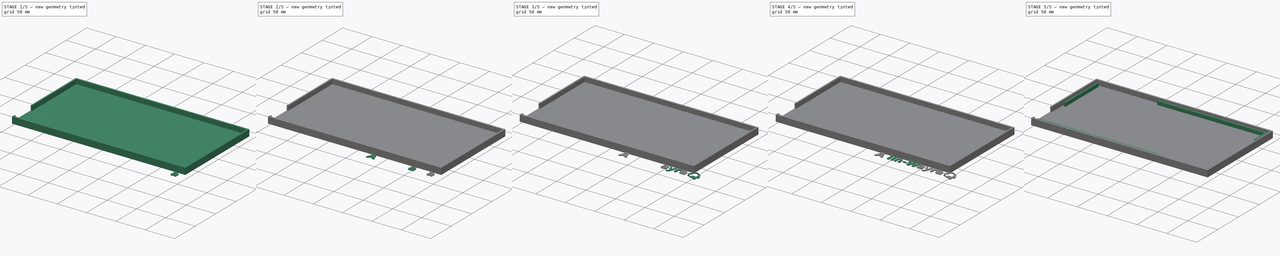
[diagram: build sequence overview — one tinted view per stage of 5, left to right]
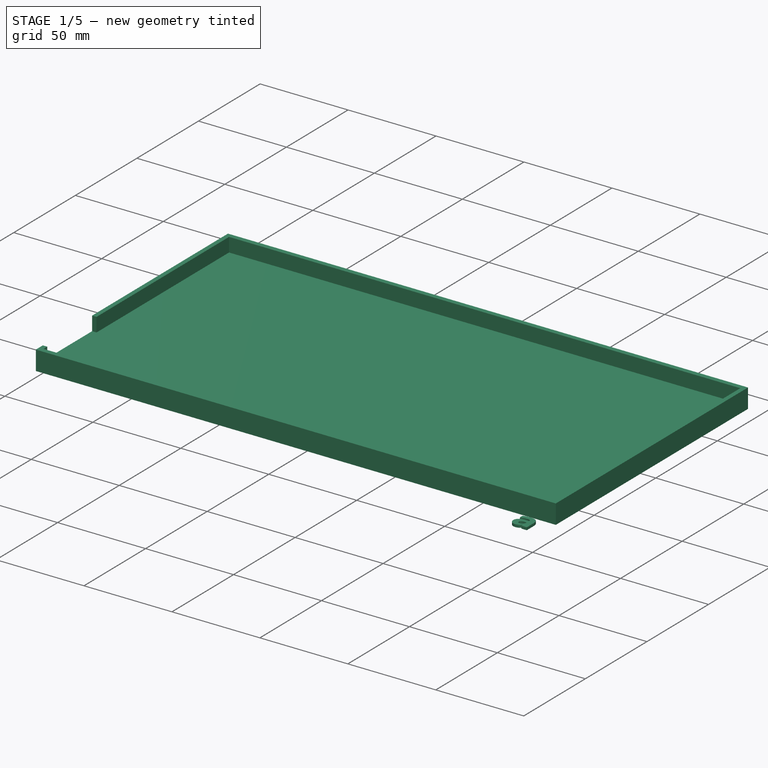
[diagram: stage 1 of 5 — iso view after this stage's code; geometry added in this stage tinted green]
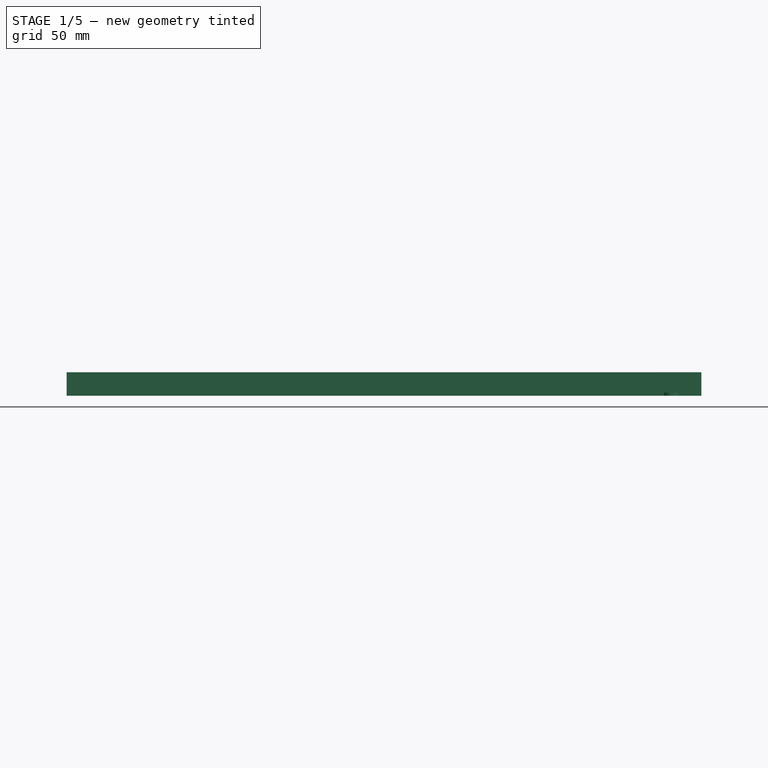
[diagram: stage 1 of 5 — front view after this stage's code; geometry added in this stage tinted green]
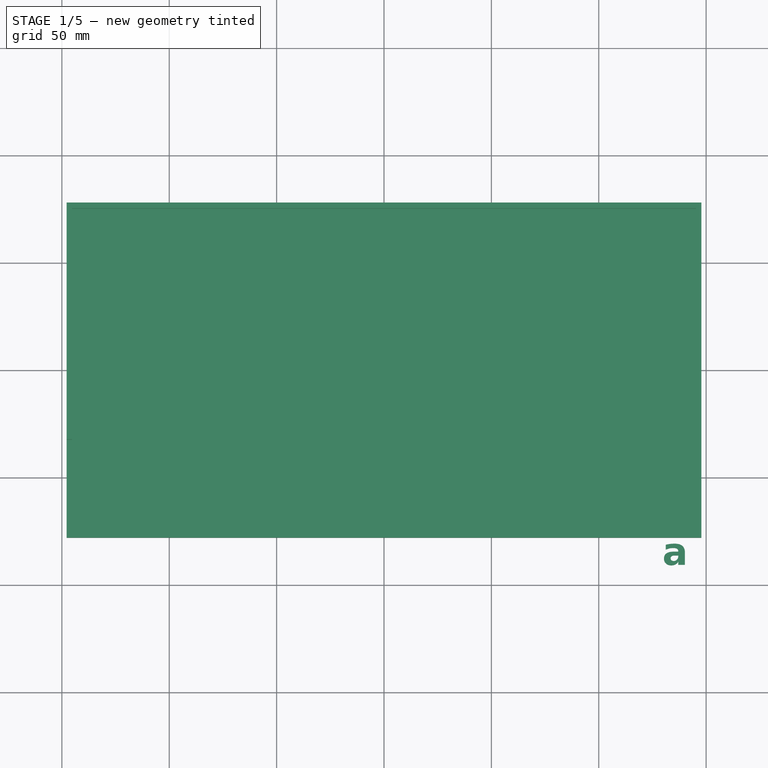
[diagram: stage 1 of 5 — top view after this stage's code; geometry added in this stage tinted green]
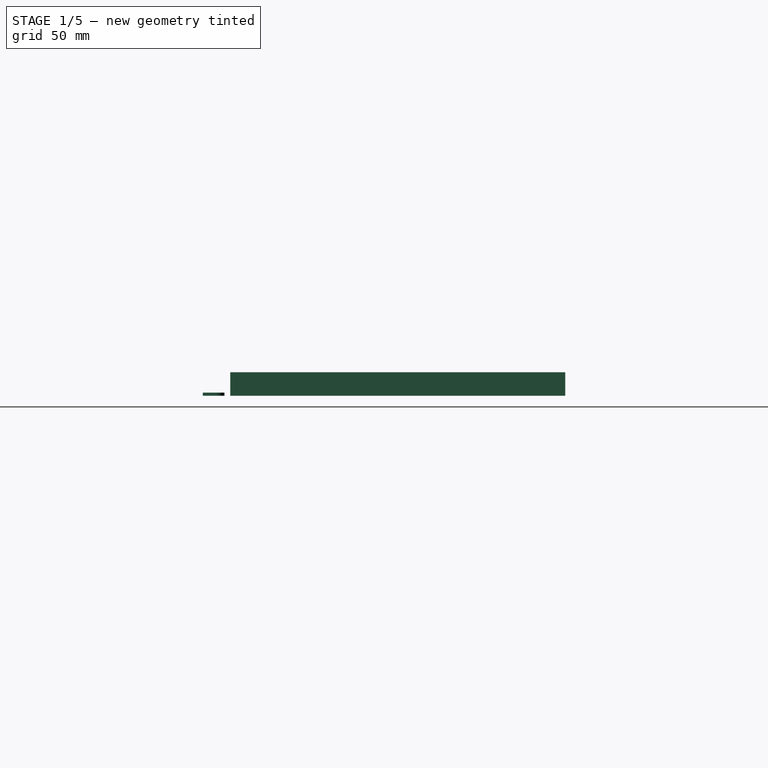
[diagram: stage 1 of 5 — right view after this stage's code; geometry added in this stage tinted green]
FCSTD DOCUMENT  (FreeCAD 0.16R6712 (Git))
Label: tapa
License: All rights reserved
LicenseURL: http://en.wikipedia.org/wiki/All_rights_reserved
objects: Part::Feature×21, Part::Extrusion×18, Sketcher::SketchObject×6, Part::Cut×4, PartDesign::Pad×3, PartDesign::Pocket×3, Part::MultiFuse×1
note: 62 computed .brp shape members not serialized (recipe doc carries the construction recipe); baked Part::Feature solids carry a one-line shape summary decoded from their .brp

FEATURE [Sketcher::SketchObject] Sketch
  sketch-geometry (4):
    g0: LineSegment StartX=-147.8 StartY=78 StartZ=0 EndX=147.8 EndY=78 EndZ=0
    g1: LineSegment StartX=147.8 StartY=78 StartZ=0 EndX=147.8 EndY=-78 EndZ=0
    g2: LineSegment StartX=147.8 StartY=-78 StartZ=0 EndX=-147.8 EndY=-78 EndZ=0
    g3: LineSegment StartX=-147.8 StartY=-78 StartZ=0 EndX=-147.8 EndY=78 EndZ=0
  constraints (13):
    c: Coincident(g0,g1)
    c: Coincident(g1,g2)
    c: Coincident(g2,g3)
    c: Coincident(g3,g0)
    c: Horizontal(g0)
    c: Horizontal(g2)
    c: Vertical(g1)
    c: Vertical(g3)
    c: Equal(g0,g2)
    c: DistanceX(g0,g0) = 295.6
    c: DistanceY(g3,g3) = 156
    c: Symmetric(g0,g2,g-1)
    c: Symmetric(g0,g0,g-2)
FEATURE [PartDesign::Pad] Pad
  Length = 3
  Length2 = 100
  Sketch = -> Sketch
  Type = 0
FEATURE [Part::Extrusion] Extrude013
  Base = -> path3395
  Dir = (0,0,1.5)
  Solid = true
FEATURE [Part::Extrusion] Extrude014
  Base = -> path3395001
  Dir = (0,0,1.5)
  Solid = true
FEATURE [Part::Cut] Cut002
  Base = -> Extrude014
  Tool = -> Extrude013
FEATURE [PartDesign::Pad] Pad001
  Length = 8
  Length2 = 100
  Sketch = -> Sketch002
  Type = 0
FEATURE [Sketcher::SketchObject] Sketch003
  Placement = pos=(-147.8,0,0) rot=(0.57735,-0.57735,-0.57735;2.0944rad)
  Support = -> Pad001 [Face9]
  sketch-geometry (4):
    g0: LineSegment StartX=32.3 StartY=11 StartZ=0 EndX=72.3 EndY=11 EndZ=0
    g1: LineSegment StartX=72.3 StartY=11 StartZ=0 EndX=72.3 EndY=3 EndZ=0
    g2: LineSegment StartX=72.3 StartY=3 StartZ=0 EndX=32.3 EndY=3 EndZ=0
    g3: LineSegment StartX=32.3 StartY=3 StartZ=0 EndX=32.3 EndY=11 EndZ=0
  constraints (14):
    c: Coincident(g0,g1)
    c: Coincident(g1,g2)
    c: Coincident(g2,g3)
    c: Coincident(g3,g0)
    c: Horizontal(g0)
    c: Horizontal(g2)
    c: Vertical(g1)
    c: Vertical(g3)
    c: DistanceX(g-1,g2) = 32.3
    c: DistanceX(g0,g0) = 40
    c: Equal(g2,g0)
    c: Equal(g3,g1)
    c: DistanceY(g1,g1) = 8
    c: DistanceY(g-1,g2) = 3
FEATURE [PartDesign::Pocket] Pocket
  Length = 2.5
  Sketch = -> Sketch003
  Type = 0
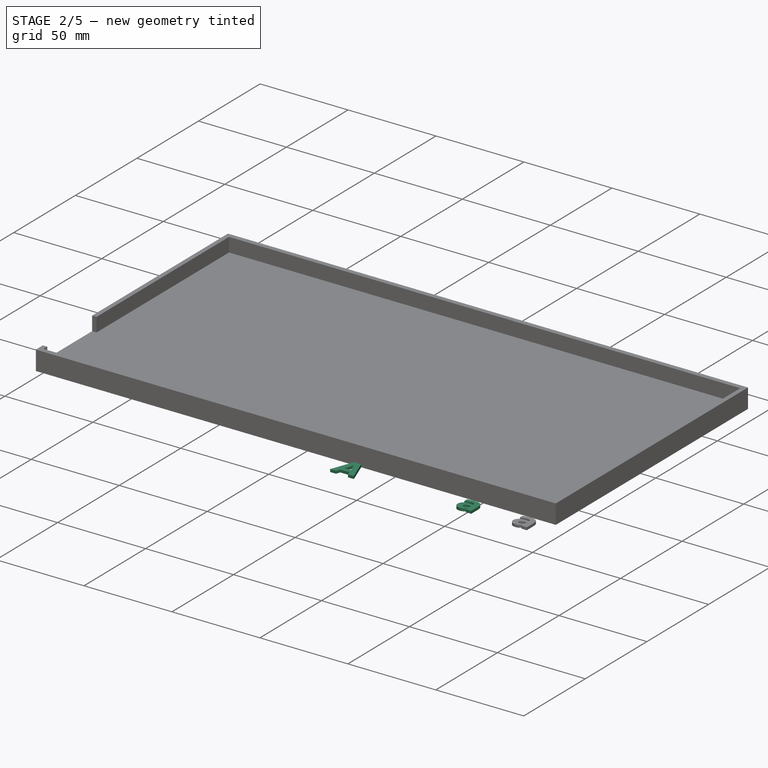
[diagram: stage 2 of 5 — iso view after this stage's code; geometry added in this stage tinted green]
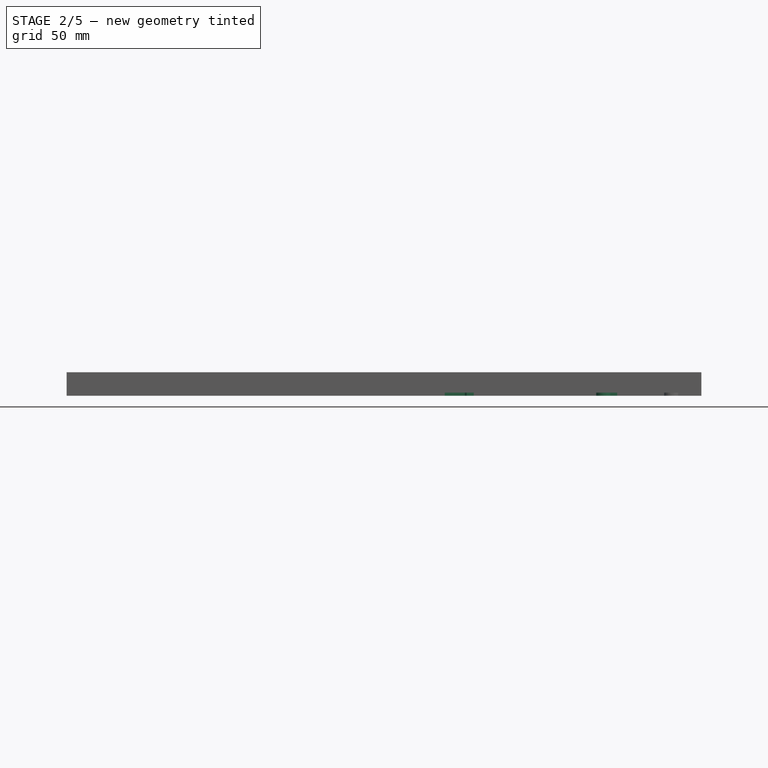
[diagram: stage 2 of 5 — front view after this stage's code; geometry added in this stage tinted green]
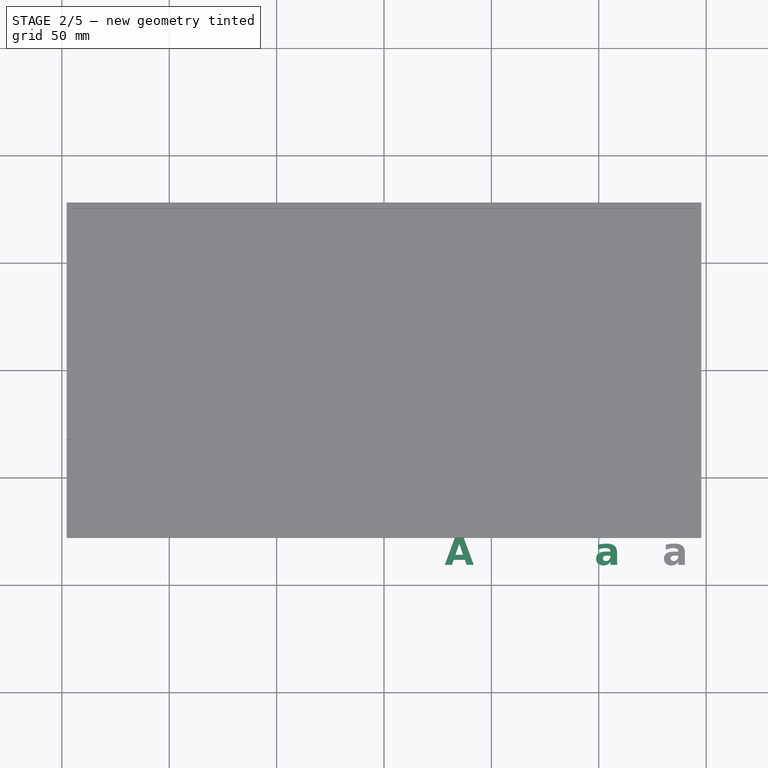
[diagram: stage 2 of 5 — top view after this stage's code; geometry added in this stage tinted green]
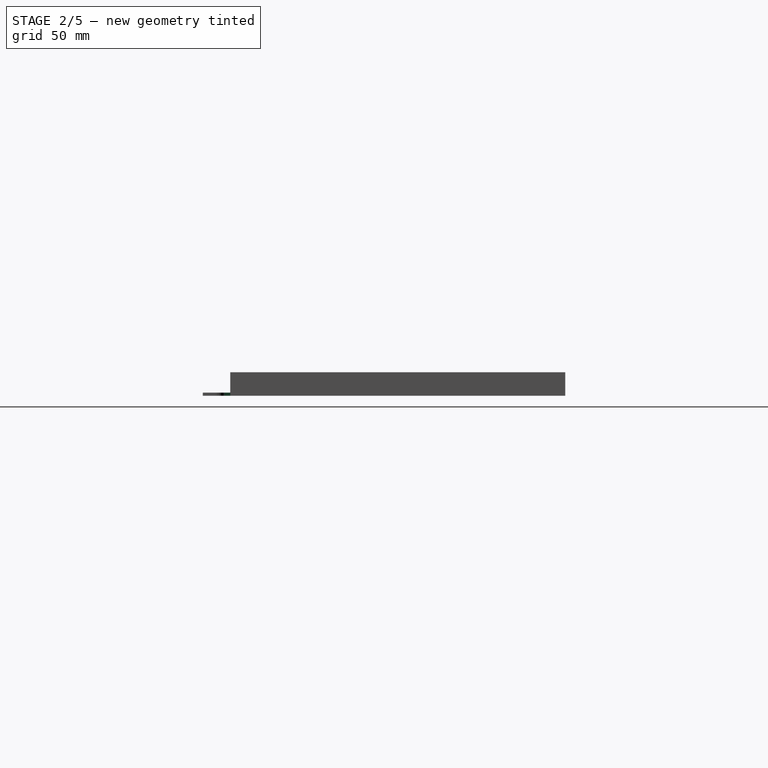
[diagram: stage 2 of 5 — right view after this stage's code; geometry added in this stage tinted green]
FEATURE [Sketcher::SketchObject] Sketch002
  Placement = pos=(0,0,3) rot=(0,0,1;0rad)
  Support = -> Pad [Face6]
  sketch-geometry (8):
    g0: LineSegment StartX=-147.8 StartY=78 StartZ=0 EndX=147.8 EndY=78 EndZ=0
    g1: LineSegment StartX=147.8 StartY=78 StartZ=0 EndX=147.8 EndY=-78 EndZ=0
    g2: LineSegment StartX=147.8 StartY=-78 StartZ=0 EndX=-147.8 EndY=-78 EndZ=0
    g3: LineSegment StartX=-147.8 StartY=-78 StartZ=0 EndX=-147.8 EndY=78 EndZ=0
    g4: LineSegment StartX=-145.3 StartY=75.3 StartZ=0 EndX=145.3 EndY=75.3 EndZ=0
    g5: LineSegment StartX=145.3 StartY=75.3 StartZ=0 EndX=145.3 EndY=-75.3 EndZ=0
    g6: LineSegment StartX=145.3 StartY=-75.3 StartZ=0 EndX=-145.3 EndY=-75.3 EndZ=0
    g7: LineSegment StartX=-145.3 StartY=-75.3 StartZ=0 EndX=-145.3 EndY=75.3 EndZ=0
  constraints (26):
    c: Coincident(g0,g1)
    c: Coincident(g1,g2)
    c: Coincident(g2,g3)
    c: Coincident(g3,g0)
    c: Horizontal(g2)
    c: Vertical(g1)
    c: Vertical(g3)
    c: Coincident(g4,g5)
    c: Coincident(g5,g6)
    c: Coincident(g6,g7)
    c: Coincident(g7,g4)
    c: Horizontal(g6)
    c: Vertical(g5)
    c: Vertical(g7)
    c: Equal(g4,g6)
    c: DistanceX(g4,g4) = 290.6
    c: Equal(g0,g2)
    c: DistanceX(g0,g0) = 295.6
    c: Symmetric(g0,g0,g-2)
    c: Symmetric(g4,g4,g-2)
    c: Equal(g7,g5)
    c: Equal(g3,g1)
    c: DistanceY(g3,g3) = 156
    c: Symmetric(g0,g2,g-1)
    c: Symmetric(g4,g6,g-1)
    c: DistanceY(g7,g7) = 150.6
FEATURE [Part::Feature] path3375
  shape: bbox 13.48 x 12.86 x 2e-07 mm, 0 faces, 0 solids (baked)
FEATURE [Part::Feature] path3375001
  shape: bbox 3.523 x 5.116 x 2e-07 mm, 0 faces, 0 solids (baked)
FEATURE [Part::Feature] path3377
  shape: bbox 3.083 x 13.4 x 2e-07 mm, 0 faces, 0 solids (baked)
FEATURE [Part::Feature] path3379
  shape: bbox 3.083 x 13.4 x 2e-07 mm, 0 faces, 0 solids (baked)
FEATURE [Part::Feature] path3381
  shape: bbox 3.083 x 9.646 x 2e-07 mm, 0 faces, 0 solids (baked)
FEATURE [Part::Feature] path3381001
  shape: bbox 3.083 x 2.515 x 2e-07 mm, 0 faces, 0 solids (baked)
FEATURE [Part::Feature] path3383
  shape: bbox 9.698 x 9.879 x 2e-07 mm, 0 faces, 0 solids (baked)
FEATURE [Part::Feature] path3385
  shape: bbox 5.409 x 2.506 x 2e-07 mm, 0 faces, 0 solids (baked)
FEATURE [Part::Feature] path3387
  shape: bbox 18.38 x 12.86 x 2e-07 mm, 0 faces, 0 solids (baked)
FEATURE [Part::Feature] path3389
  shape: bbox 3.54 x 2.541 x 2e-07 mm, 0 faces, 0 solids (baked)
FEATURE [Part::Feature] path3389001
  shape: bbox 9.758 x 10.13 x 2e-07 mm, 0 faces, 0 solids (baked)
FEATURE [Part::Feature] path3391
  shape: bbox 10.96 x 13.45 x 2e-07 mm, 0 faces, 0 solids (baked)
FEATURE [Part::Feature] path3393
  shape: bbox 7.166 x 9.879 x 2e-07 mm, 0 faces, 0 solids (baked)
FEATURE [Part::Feature] path3395
  shape: bbox 3.54 x 2.541 x 2e-07 mm, 0 faces, 0 solids (baked)
FEATURE [Part::Feature] path3395001
  shape: bbox 9.758 x 10.13 x 2e-07 mm, 0 faces, 0 solids (baked)
FEATURE [Part::Feature] path3509
  shape: bbox 17.43 x 14.72 x 2e-07 mm, 0 faces, 0 solids (baked)
FEATURE [Part::Feature] path3509001
  shape: bbox 12.2 x 5.515 x 2e-07 mm, 0 faces, 0 solids (baked)
FEATURE [Part::Feature] path3509002
  shape: bbox 11.04 x 4.907 x 2e-07 mm, 0 faces, 0 solids (baked)
FEATURE [Part::Extrusion] Extrude
  Base = -> path3375
  Dir = (0,0,1.5)
  Solid = true
FEATURE [Part::Extrusion] Extrude001
  Base = -> path3375001
  Dir = (0,0,1.5)
  Solid = true
FEATURE [Part::Extrusion] Extrude009
  Base = -> path3389
  Dir = (0,0,1.5)
  Solid = true
FEATURE [Part::Extrusion] Extrude010
  Base = -> path3389001
  Dir = (0,0,1.5)
  Solid = true
FEATURE [Part::Cut] Cut
  Base = -> Extrude
  Tool = -> Extrude001
FEATURE [Part::Cut] Cut001
  Base = -> Extrude010
  Tool = -> Extrude009
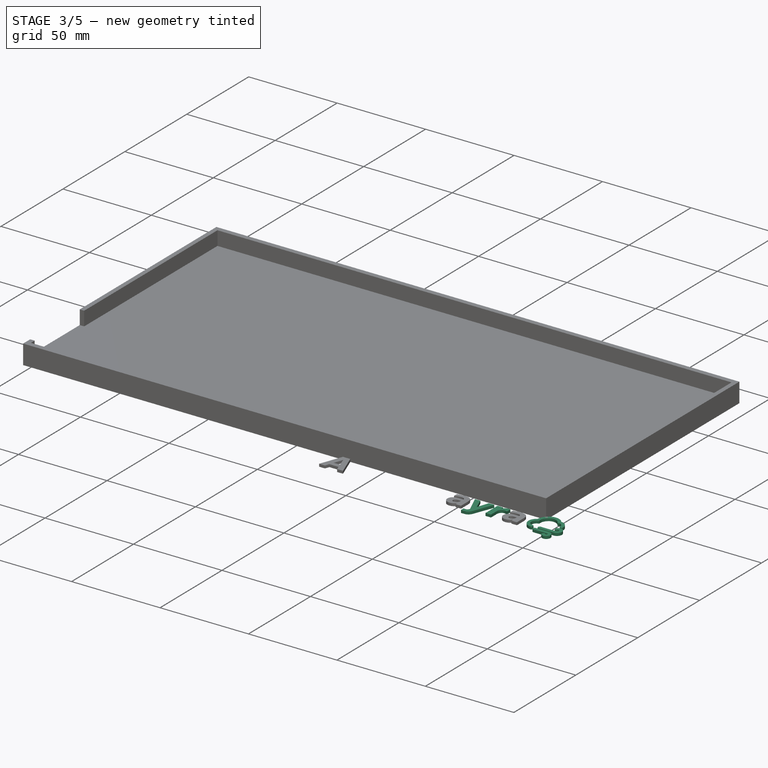
[diagram: stage 3 of 5 — iso view after this stage's code; geometry added in this stage tinted green]
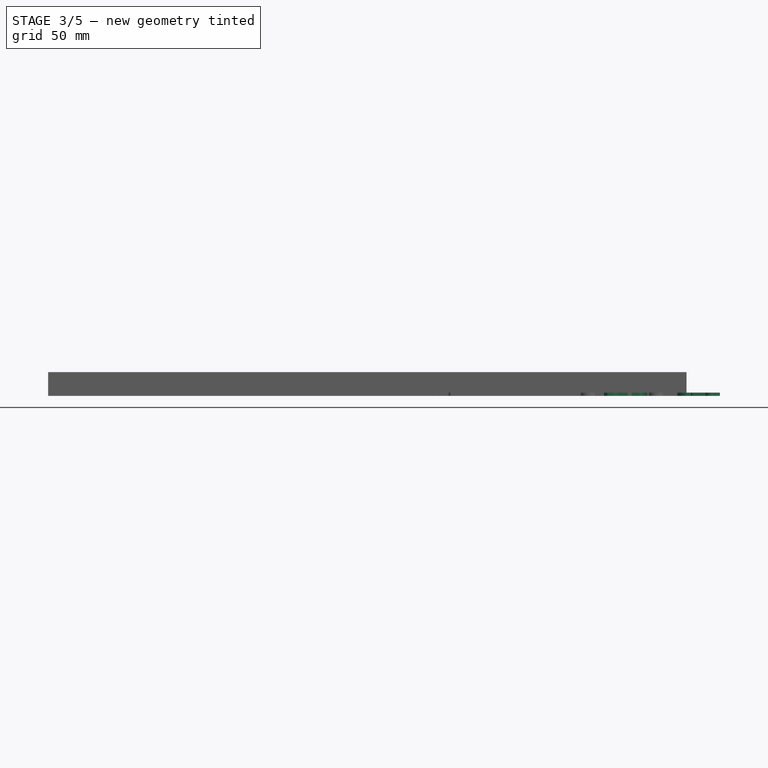
[diagram: stage 3 of 5 — front view after this stage's code; geometry added in this stage tinted green]
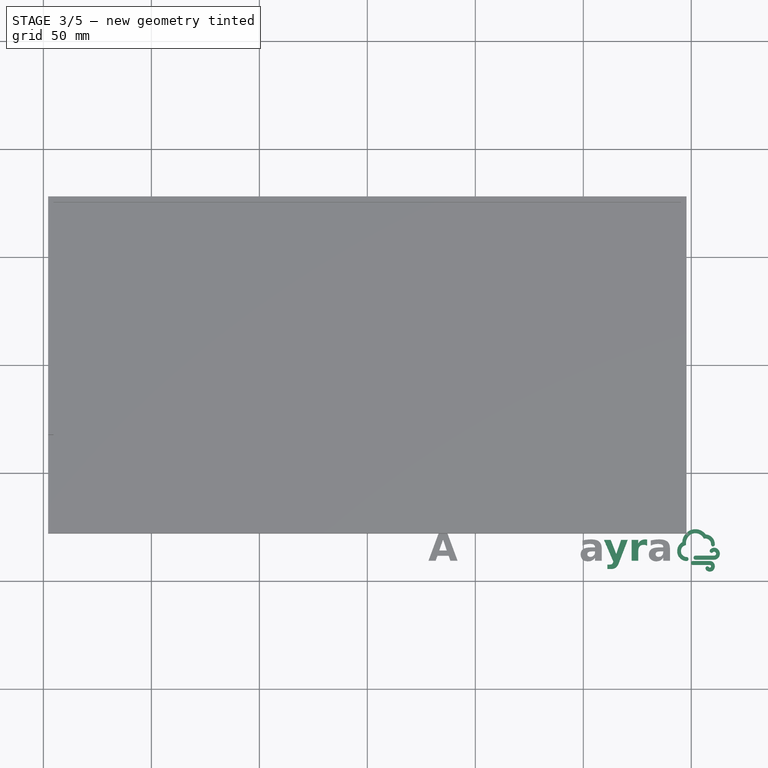
[diagram: stage 3 of 5 — top view after this stage's code; geometry added in this stage tinted green]
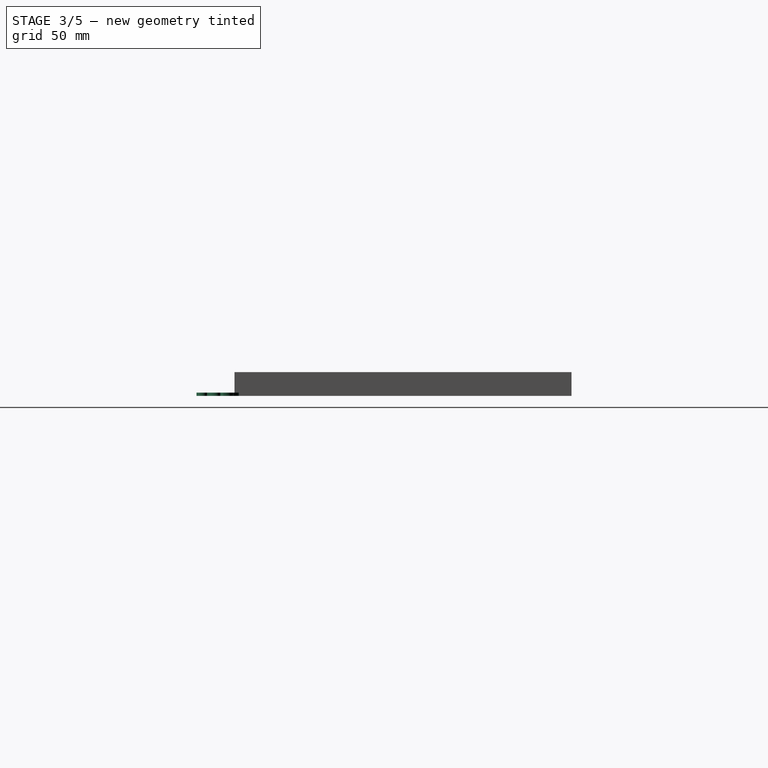
[diagram: stage 3 of 5 — right view after this stage's code; geometry added in this stage tinted green]
FEATURE [Part::Extrusion] Extrude011
  Base = -> path3391
  Dir = (0,0,1.5)
  Solid = true
FEATURE [Part::Extrusion] Extrude012
  Base = -> path3393
  Dir = (0,0,1.5)
  Solid = true
FEATURE [Part::Extrusion] Extrude015
  Base = -> path3509
  Dir = (0,0,1.5)
  Solid = true
FEATURE [Part::Extrusion] Extrude016
  Base = -> path3509001
  Dir = (0,0,1.5)
  Solid = true
FEATURE [Part::Extrusion] Extrude017
  Base = -> path3509002
  Dir = (0,0,1.5)
  Solid = true
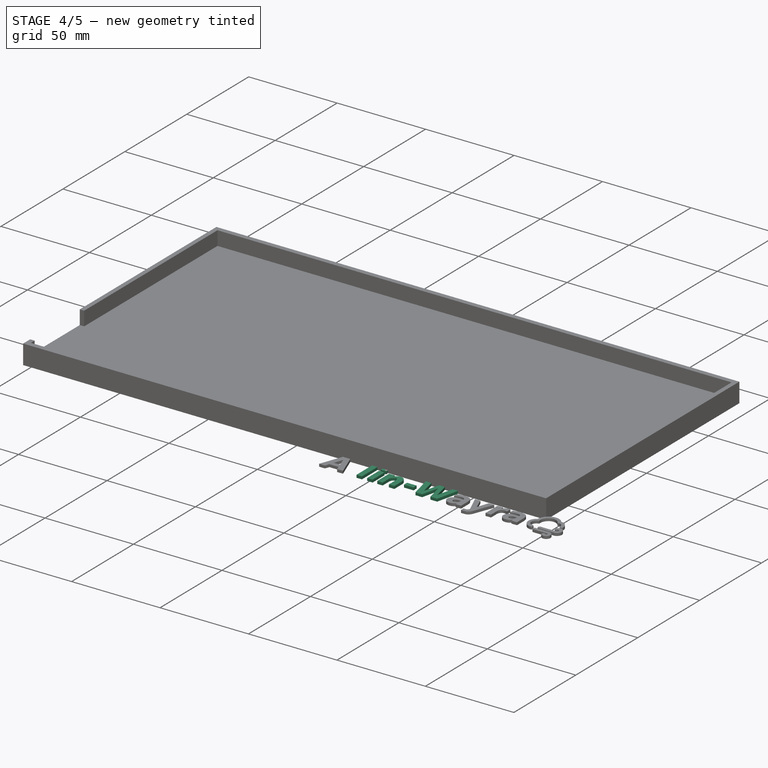
[diagram: stage 4 of 5 — iso view after this stage's code; geometry added in this stage tinted green]
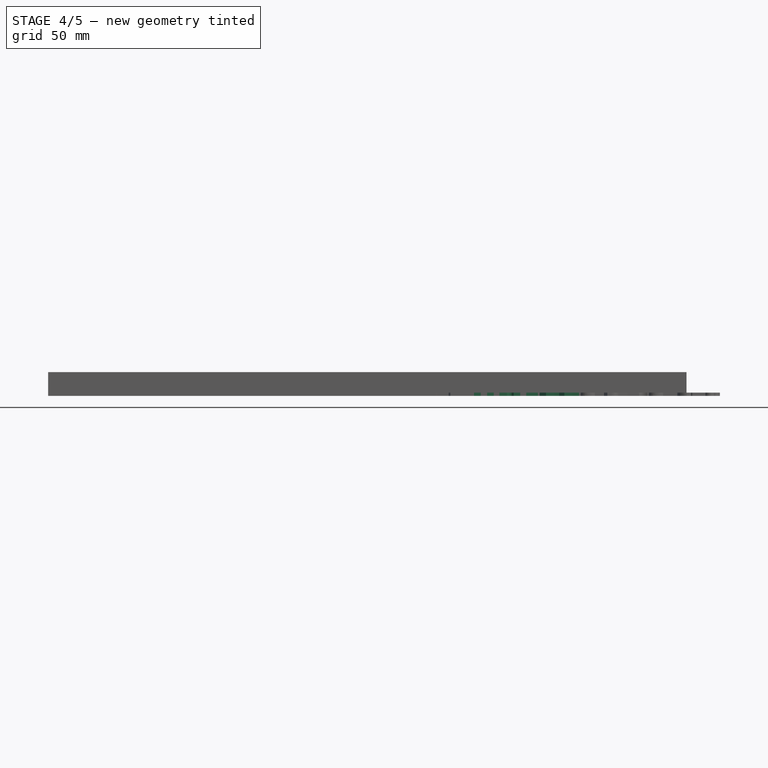
[diagram: stage 4 of 5 — front view after this stage's code; geometry added in this stage tinted green]
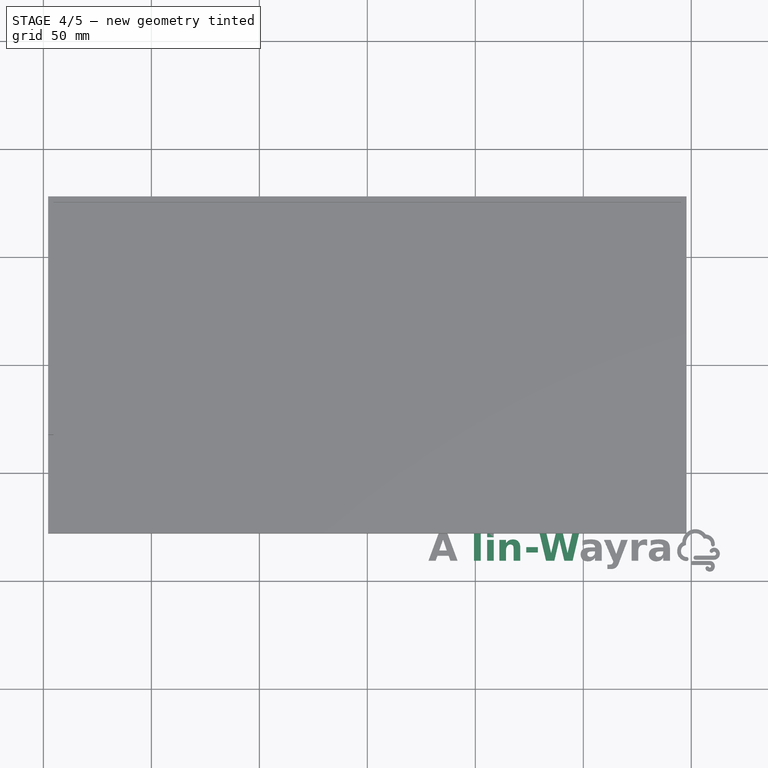
[diagram: stage 4 of 5 — top view after this stage's code; geometry added in this stage tinted green]
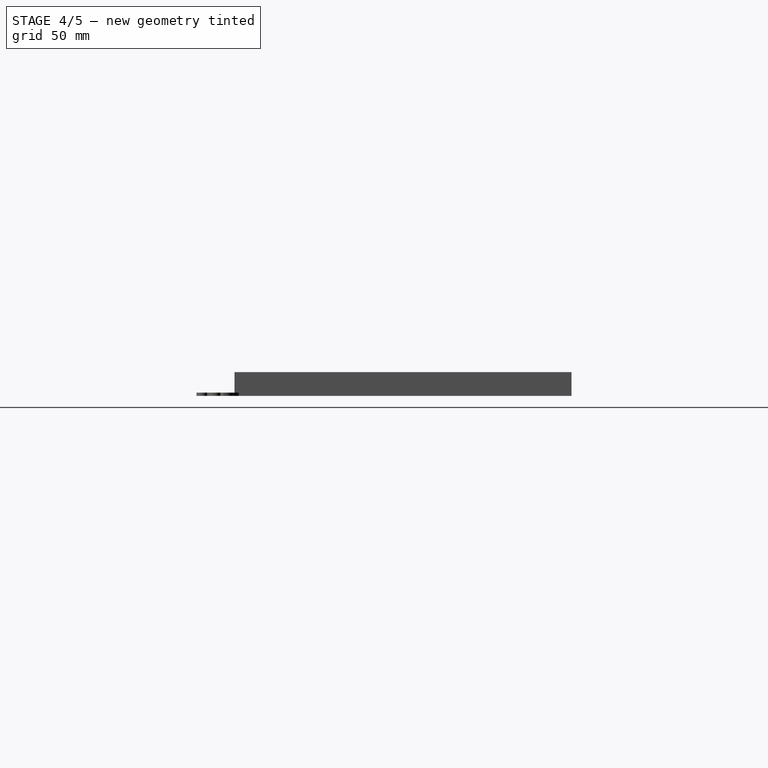
[diagram: stage 4 of 5 — right view after this stage's code; geometry added in this stage tinted green]
FEATURE [Part::Extrusion] Extrude003
  Base = -> path3379
  Dir = (0,0,1.5)
  Solid = true
FEATURE [Part::Extrusion] Extrude004
  Base = -> path3381
  Dir = (0,0,1.5)
  Solid = true
FEATURE [Part::Extrusion] Extrude005
  Base = -> path3381001
  Dir = (0,0,1.5)
  Solid = true
FEATURE [Part::Extrusion] Extrude006
  Base = -> path3383
  Dir = (0,0,1.5)
  Solid = true
FEATURE [Part::Extrusion] Extrude007
  Base = -> path3385
  Dir = (0,0,1.5)
  Solid = true
FEATURE [Part::Extrusion] Extrude008
  Base = -> path3387
  Dir = (0,0,1.5)
  Solid = true
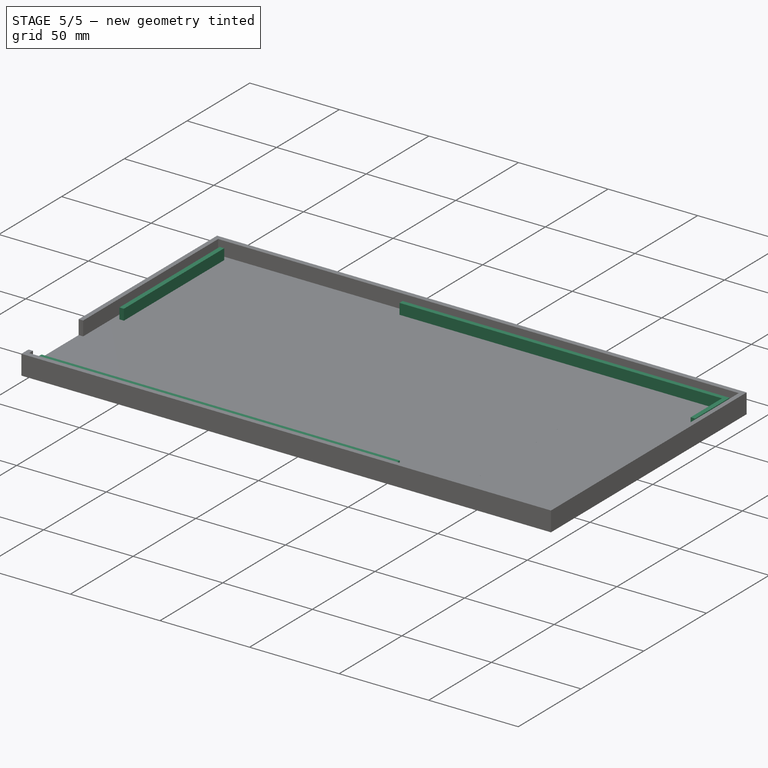
[diagram: stage 5 of 5 — iso view after this stage's code; geometry added in this stage tinted green]
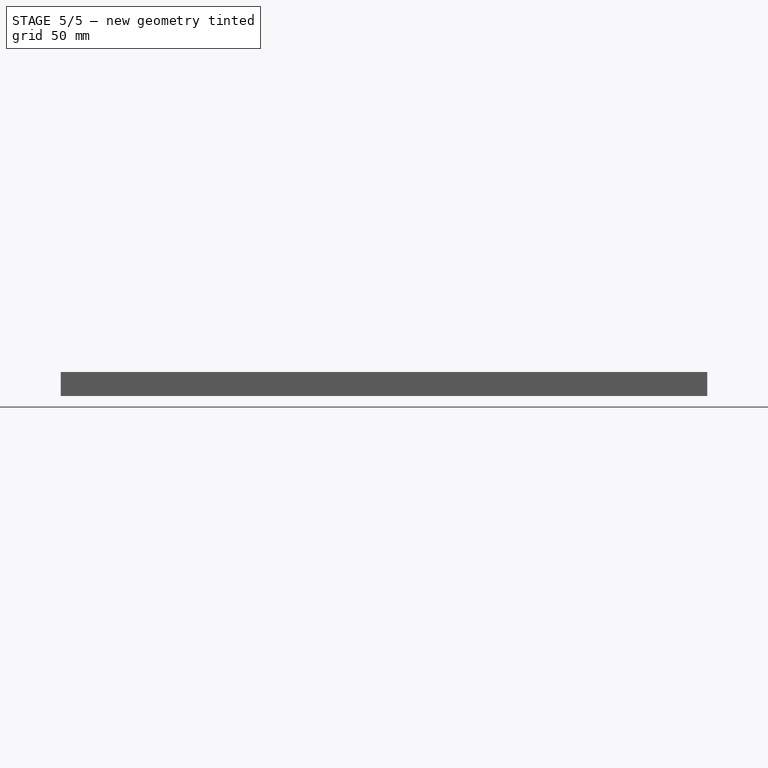
[diagram: stage 5 of 5 — front view after this stage's code; geometry added in this stage tinted green]
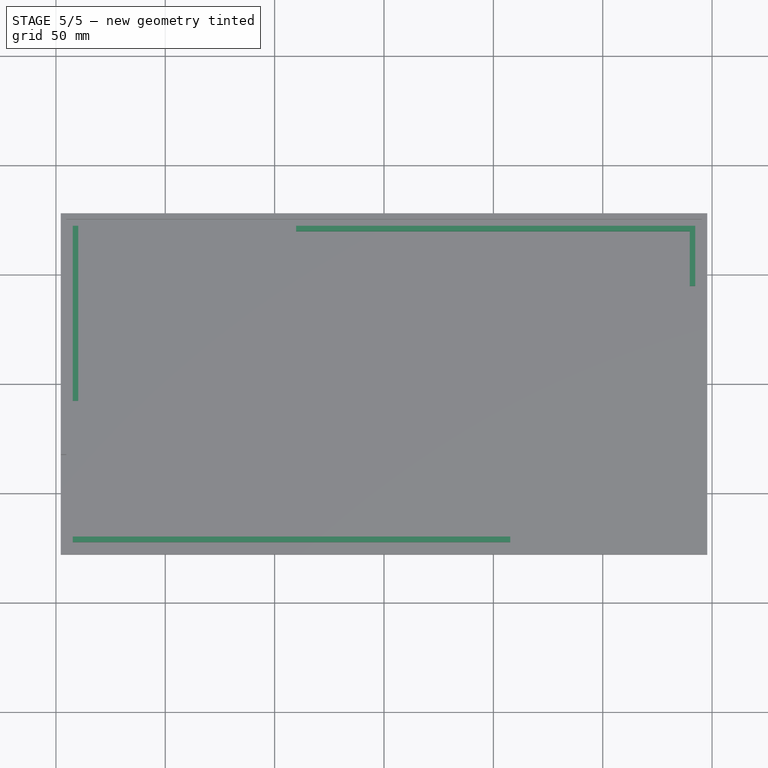
[diagram: stage 5 of 5 — top view after this stage's code; geometry added in this stage tinted green]
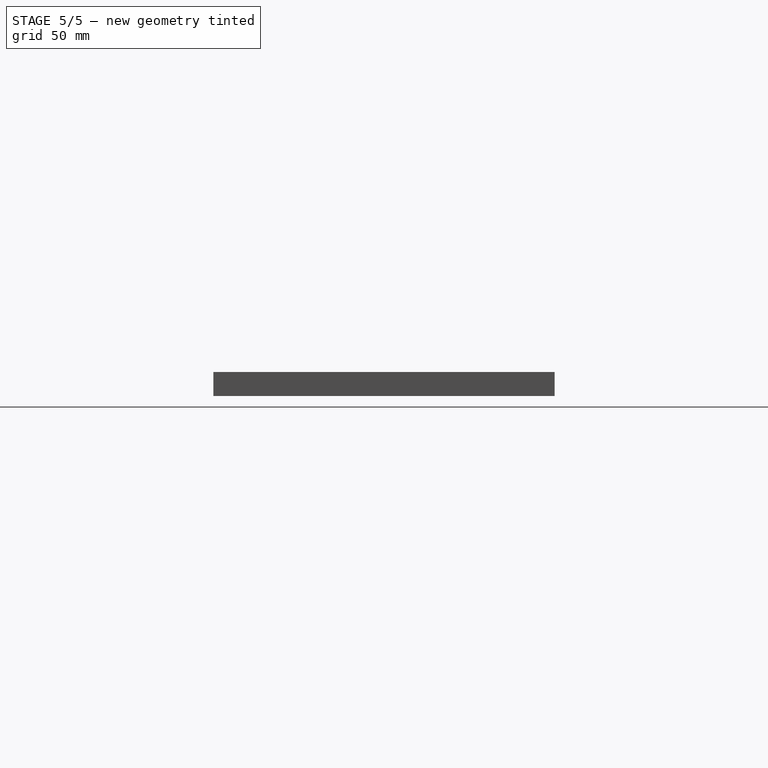
[diagram: stage 5 of 5 — right view after this stage's code; geometry added in this stage tinted green]
FEATURE [Part::Extrusion] Extrude002
  Base = -> path3377
  Dir = (0,0,1.5)
  Solid = true
FEATURE [Part::MultiFuse] Fusion
  Placement = pos=(-157,-134,1.5) rot=(1,0,0;3.14159rad)
  Shapes = -> [Cut002,Extrude016,Extrude004,Cut001,Extrude003,Extrude005,Extrude017,Extrude006,Extrude012,Cut,Extrude007,Extrude008,Extrude011,Extrude002,Extrude015]
FEATURE [Part::Cut] Cut003
  Base = -> Pocket
  Tool = -> Fusion
FEATURE [Sketcher::SketchObject] Sketch001
  Placement = pos=(0,0,3) rot=(0,0,1;0rad)
  Support = -> Cut003 [Face201]
  sketch-geometry (18):
    g0: LineSegment [constr] StartX=-142.3 StartY=72.3 StartZ=0 EndX=142.3 EndY=72.3 EndZ=0
    g1: LineSegment [constr] StartX=142.3 StartY=72.3 StartZ=0 EndX=142.3 EndY=-72.3 EndZ=0
    g2: LineSegment [constr] StartX=142.3 StartY=-72.3 StartZ=0 EndX=-142.3 EndY=-72.3 EndZ=0
    g3: LineSegment [constr] StartX=-142.3 StartY=-72.3 StartZ=0 EndX=-142.3 EndY=72.3 EndZ=0
    g4: LineSegment StartX=-142.3 StartY=72.3 StartZ=0 EndX=-139.8 EndY=72.3 EndZ=0
    g5: LineSegment StartX=-139.8 StartY=72.3 StartZ=0 EndX=-139.8 EndY=-7.7 EndZ=0
    g6: LineSegment StartX=-139.8 StartY=-7.7 StartZ=0 EndX=-142.3 EndY=-7.7 EndZ=0
    g7: LineSegment StartX=-142.3 StartY=-7.7 StartZ=0 EndX=-142.3 EndY=72.3 EndZ=0
    g8: LineSegment StartX=-142.3 StartY=-69.8 StartZ=0 EndX=57.7 EndY=-69.8 EndZ=0
    g9: LineSegment StartX=57.7 StartY=-69.8 StartZ=0 EndX=57.7 EndY=-72.3 EndZ=0
    g10: LineSegment StartX=57.7 StartY=-72.3 StartZ=0 EndX=-142.3 EndY=-72.3 EndZ=0
    g11: LineSegment StartX=-142.3 StartY=-72.3 StartZ=0 EndX=-142.3 EndY=-69.8 EndZ=0
    g12: LineSegment StartX=-40.2 StartY=69.8 StartZ=0 EndX=139.8 EndY=69.8 EndZ=0
    g13: LineSegment StartX=139.8 StartY=69.8 StartZ=0 EndX=139.8 EndY=44.8 EndZ=0
    g14: LineSegment StartX=139.8 StartY=44.8 StartZ=0 EndX=142.3 EndY=44.8 EndZ=0
    g15: LineSegment StartX=142.3 StartY=44.8 StartZ=0 EndX=142.3 EndY=72.3 EndZ=0
    g16: LineSegment StartX=142.3 StartY=72.3 StartZ=0 EndX=-40.2 EndY=72.3 EndZ=0
    g17: LineSegment StartX=-40.2 StartY=72.3 StartZ=0 EndX=-40.2 EndY=69.8 EndZ=0
  constraints (54):
    c: Coincident(g0,g1)
    c: Coincident(g1,g2)
    c: Coincident(g2,g3)
    c: Coincident(g3,g0)
    c: Vertical(g1)
    c: Equal(g0,g2)
    c: Equal(g3,g1)
    c: DistanceX(g0,g0) = 284.6
    c: Symmetric(g0,g0,g-2)
    c: DistanceY(g3,g3) = 144.6
    c: Symmetric(g0,g2,g-1)
    c: Coincident(g4,g5)
    c: Coincident(g5,g6)
    c: Coincident(g6,g7)
    c: Coincident(g7,g4)
    c: Horizontal(g4)
    c: Horizontal(g6)
    c: Vertical(g5)
    c: Vertical(g7)
    c: Coincident(g8,g9)
    c: Coincident(g9,g10)
    c: Coincident(g10,g11)
    c: Coincident(g11,g8)
    c: Horizontal(g8)
    c: Horizontal(g10)
    c: Vertical(g9)
    c: Vertical(g11)
    c: Equal(g4,g6)
    c: Equal(g6,g11)
    c: Equal(g11,g9)
    c: DistanceX(g4,g4) = 2.5
    c: Equal(g7,g5)
    c: Equal(g10,g8)
    c: DistanceY(g5,g5) = 80
    c: DistanceX(g8,g8) = 200
    c: Horizontal(g12)
    c: Coincident(g13,g12)
    c: Vertical(g13)
    c: Coincident(g14,g13)
    c: Horizontal(g14)
    c: Coincident(g15,g14)
    c: Vertical(g15)
    c: Coincident(g16,g15)
    c: Horizontal(g16)
    c: Coincident(g17,g16)
    c: Coincident(g17,g12)
    c: Vertical(g17)
    c: Equal(g17,g11)
    c: DistanceY(g13,g13) = 25
    c: Coincident(g15,g0)
    c: DistanceX(g12,g12) = 180
    c: Coincident(g4,g0)
    c: Coincident(g10,g2)
    c: Equal(g14,g17)
FEATURE [PartDesign::Pad] Pad002
  Length = 6
  Length2 = 100
  Sketch = -> Sketch001
  Type = 0
FEATURE [Part::Feature] Pad002001  label="tapa"
  shape: bbox 295.6 x 156 x 11 mm, 240 faces (baked)
FEATURE [Sketcher::SketchObject] Sketch004
  Placement = pos=(0,0,0) rot=(1,0,0;3.14159rad)
  Support = -> Pad002 [Face1]
  sketch-geometry (4):
    g0: LineSegment StartX=90 StartY=87.0894 StartZ=0 EndX=216.991 EndY=87.0894 EndZ=0
    g1: LineSegment StartX=216.991 StartY=87.0894 StartZ=0 EndX=216.991 EndY=-97.6246 EndZ=0
    g2: LineSegment StartX=216.991 StartY=-97.6246 StartZ=0 EndX=90 EndY=-97.6246 EndZ=0
    g3: LineSegment StartX=90 StartY=-97.6246 StartZ=0 EndX=90 EndY=87.0894 EndZ=0
  constraints (11):
    c: Coincident(g0,g1)
    c: Coincident(g1,g2)
    c: Coincident(g2,g3)
    c: Coincident(g3,g0)
    c: Horizontal(g0)
    c: Horizontal(g2)
    c: Vertical(g1)
    c: Vertical(g3)
    c: Equal(g0,g2)
    c: Equal(g3,g1)
    c: DistanceX(g-1,g2) = 90
FEATURE [PartDesign::Pocket] Pocket001  label="tapa1"
  Length = 13
  Sketch = -> Sketch004
  Type = 0
FEATURE [Sketcher::SketchObject] Sketch005
  Placement = pos=(0,0,0) rot=(1,0,0;3.14159rad)
  Support = -> Pad002 [Face1]
  sketch-geometry (4):
    g0: LineSegment StartX=-179.106 StartY=101.85 StartZ=0 EndX=90 EndY=101.85 EndZ=0
    g1: LineSegment StartX=90 StartY=101.85 StartZ=0 EndX=90 EndY=-112.166 EndZ=0
    g2: LineSegment StartX=90 StartY=-112.166 StartZ=0 EndX=-179.106 EndY=-112.166 EndZ=0
    g3: LineSegment StartX=-179.106 StartY=-112.166 StartZ=0 EndX=-179.106 EndY=101.85 EndZ=0
  constraints (11):
    c: Coincident(g0,g1)
    c: Coincident(g1,g2)
    c: Coincident(g2,g3)
    c: Coincident(g3,g0)
    c: Horizontal(g0)
    c: Horizontal(g2)
    c: Vertical(g1)
    c: Vertical(g3)
    c: DistanceX(g-1,g1) = 90
    c: Equal(g0,g2)
    c: Equal(g3,g1)
FEATURE [PartDesign::Pocket] Pocket002  label="tapa2"
  Length = 13
  Sketch = -> Sketch005
  Type = 0
FEATURE [Part::Feature] Pocket001001  label="tapa003"
  shape: bbox 237.8 x 156 x 11 mm, 237 faces (baked)
FEATURE [Part::Feature] Pocket002001  label="tapa004"
  shape: bbox 57.8 x 156 x 11 mm, 16 faces (baked)
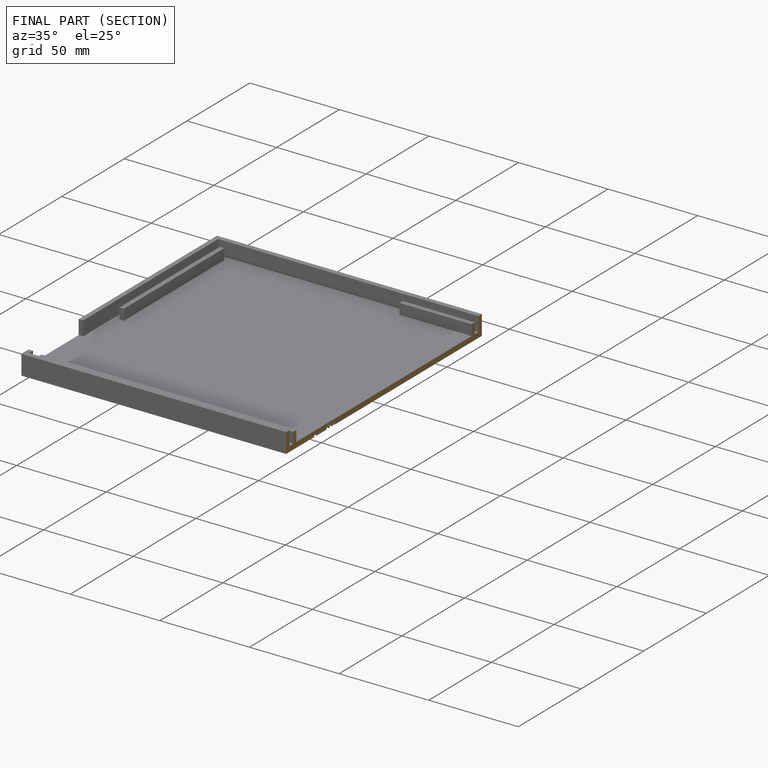
[diagram: finished part — half-section view (interior)]
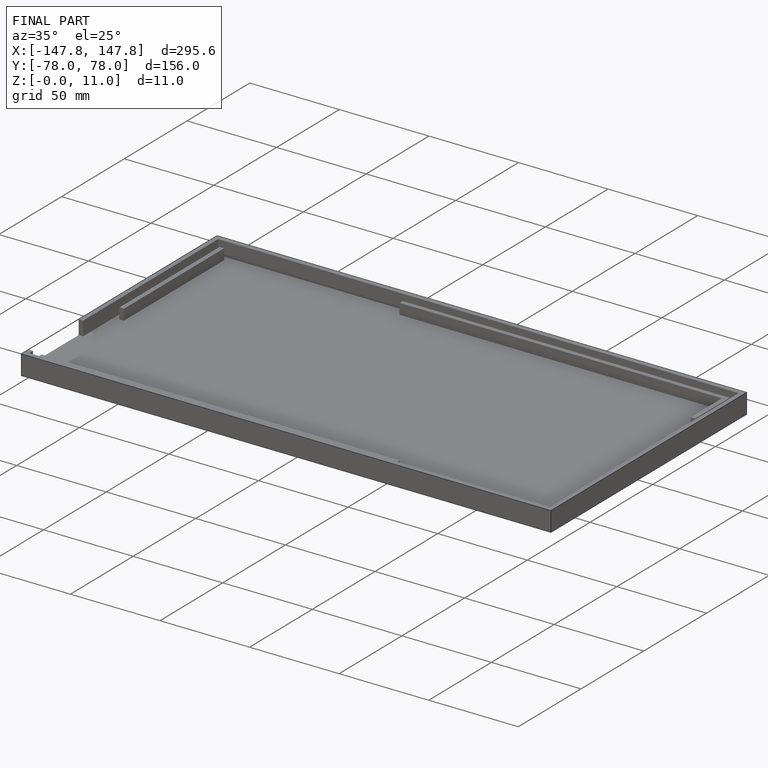
[diagram: finished part — iso view with bounding-box wireframe]
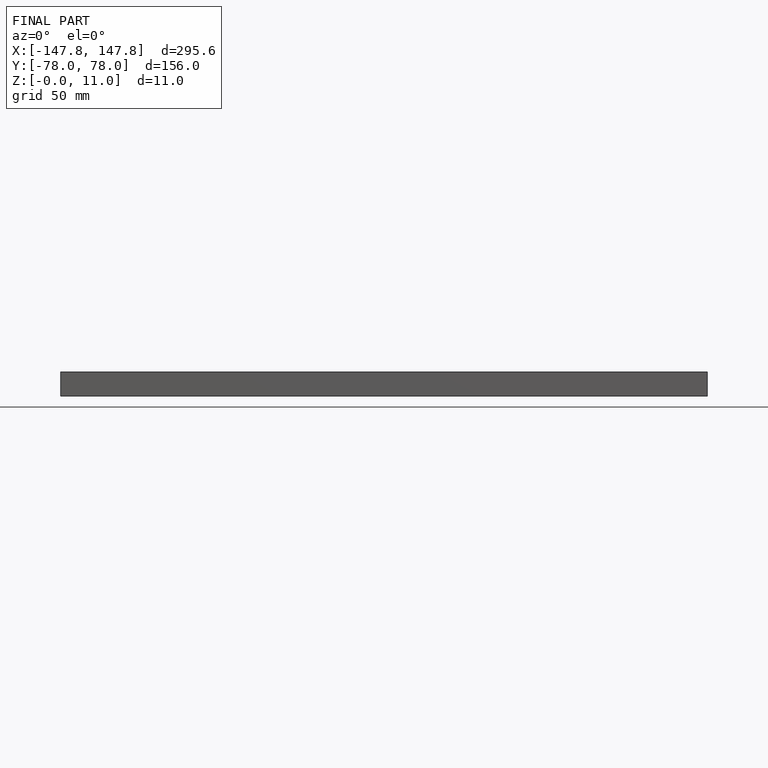
[diagram: finished part — front view with bounding-box wireframe]
